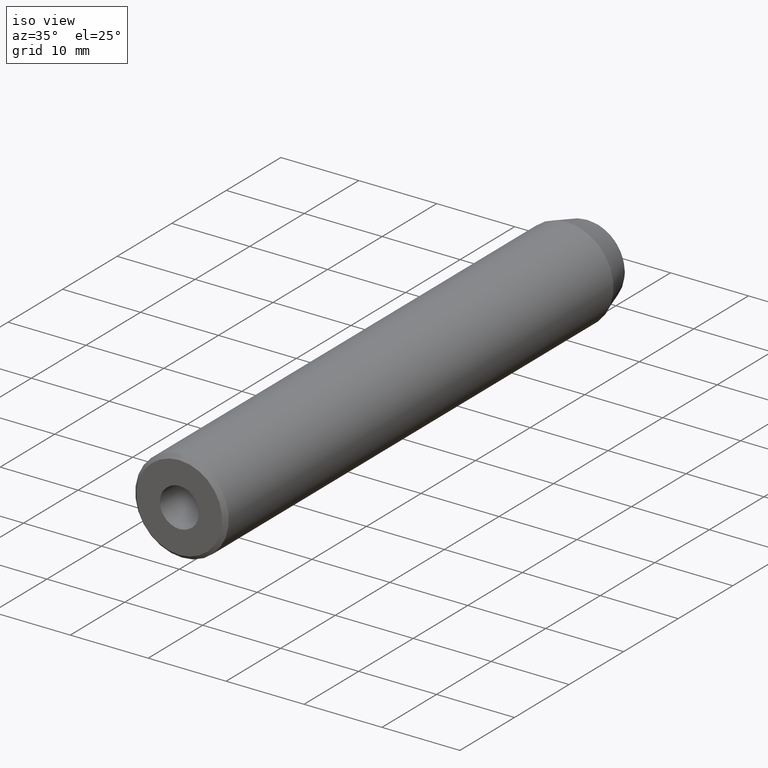
[diagram: clean part render]
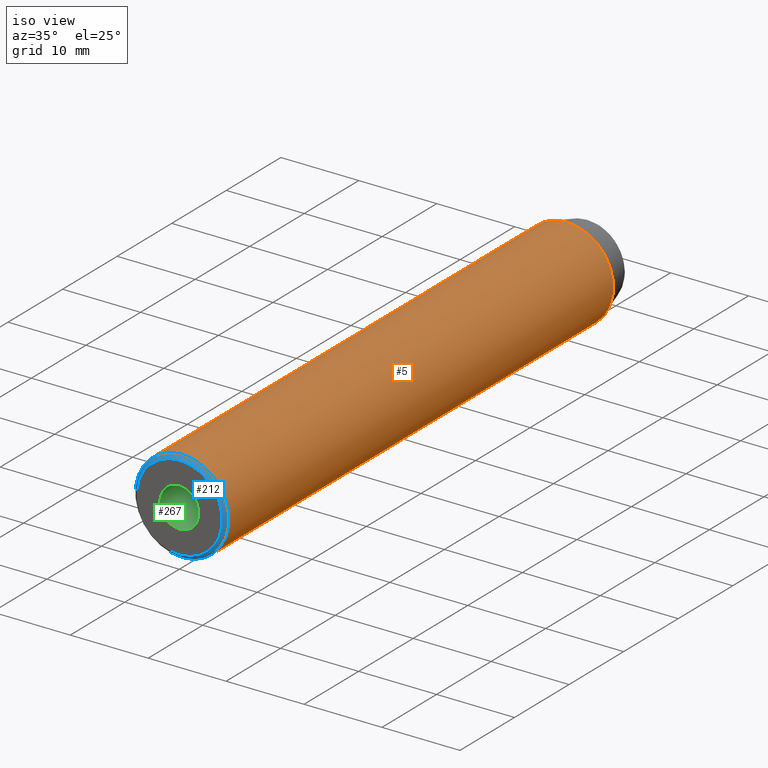
[diagram: same view with three faces highlighted in distinct colors, each labeled with its STEP entity id]
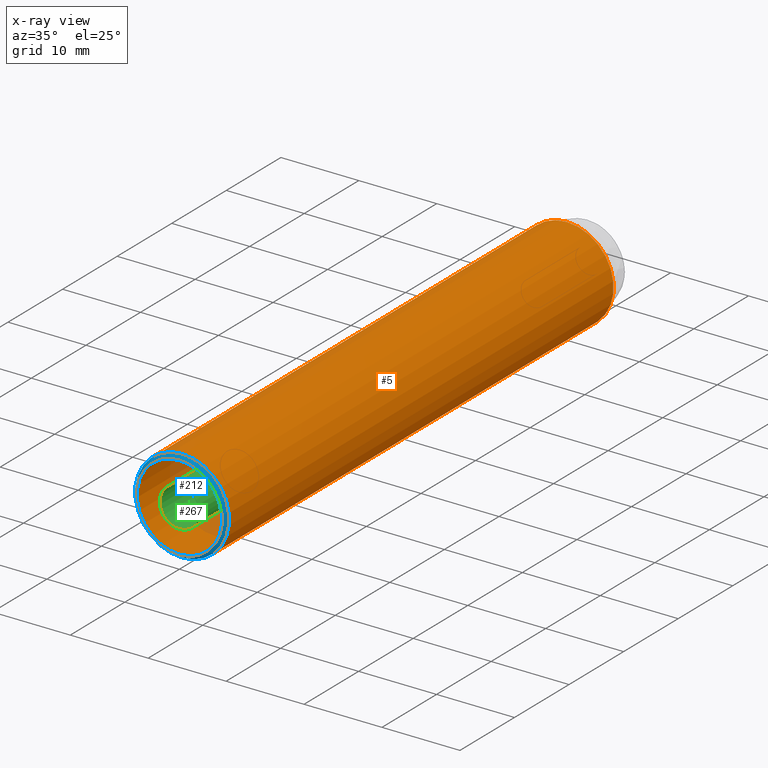
[diagram: x-ray of the same camera — body ghosted, the three highlighted faces saturated]
A machine part, iso view with three faces highlighted in distinct colors.
The next image is the same camera in x-ray (body ghosted, the three faces saturated) — at least one of them is partly hidden behind the body in this view.
Their STEP definitions:

[orange] entity #5 — the highlighted cylindrical surface (bore or boss wall) has radius 6 mm, axis along (-0, -1, -0).
#5 = ADVANCED_FACE ( 'NONE', ( #305, #85 ), #189, .T. ) ;
#7 = CARTESIAN_POINT ( 'NONE',  ( 0.000000000000000000, 0.5000000000000004441, 0.000000000000000000 ) ) ;
#15 = ORIENTED_EDGE ( 'NONE', *, *, #302, .T. ) ;
#55 = EDGE_LOOP ( 'NONE', ( #77 ) ) ;
#57 = DIRECTION ( 'NONE',  ( 0.000000000000000000, 0.000000000000000000, -1.000000000000000000 ) ) ;
#77 = ORIENTED_EDGE ( 'NONE', *, *, #145, .T. ) ;
#85 = FACE_OUTER_BOUND ( 'NONE', #207, .T. ) ;
#87 = CARTESIAN_POINT ( 'NONE',  ( 0.000000000000000000, 70.99999999999998579, -6.000000000000000888 ) ) ;
#111 = CIRCLE ( 'NONE', #148, 6.000000000000000888 ) ;
#145 = EDGE_CURVE ( 'NONE', #286, #286, #111, .T. ) ;
#148 = AXIS2_PLACEMENT_3D ( 'NONE', #7, #228, #164 ) ;
#156 = CARTESIAN_POINT ( 'NONE',  ( 0.000000000000000000, 0.5000000000000004441, -6.000000000000000888 ) ) ;
#164 = DIRECTION ( 'NONE',  ( 0.000000000000000000, 0.000000000000000000, -1.000000000000000000 ) ) ;
#176 = DIRECTION ( 'NONE',  ( -0.000000000000000000, -1.000000000000000000, -0.000000000000000000 ) ) ;
#189 = CYLINDRICAL_SURFACE ( 'NONE', #209, 6.000000000000000888 ) ;
#192 = AXIS2_PLACEMENT_3D ( 'NONE', #235, #176, #241 ) ;
#206 = DIRECTION ( 'NONE',  ( -0.000000000000000000, -1.000000000000000000, -0.000000000000000000 ) ) ;
#207 = EDGE_LOOP ( 'NONE', ( #15 ) ) ;
#209 = AXIS2_PLACEMENT_3D ( 'NONE', #259, #206, #57 ) ;
#228 = DIRECTION ( 'NONE',  ( 0.000000000000000000, 1.000000000000000000, 0.000000000000000000 ) ) ;
#235 = CARTESIAN_POINT ( 'NONE',  ( 0.000000000000000000, 70.99999999999998579, 0.000000000000000000 ) ) ;
#241 = DIRECTION ( 'NONE',  ( 0.000000000000000000, 0.000000000000000000, -1.000000000000000000 ) ) ;
#256 = CIRCLE ( 'NONE', #192, 6.000000000000000888 ) ;
#259 = CARTESIAN_POINT ( 'NONE',  ( 0.000000000000000000, 25.00000000000000000, 0.000000000000000000 ) ) ;
#286 = VERTEX_POINT ( 'NONE', #156 ) ;
#302 = EDGE_CURVE ( 'NONE', #306, #306, #256, .T. ) ;
#305 = FACE_OUTER_BOUND ( 'NONE', #55, .T. ) ;
#306 = VERTEX_POINT ( 'NONE', #87 ) ;

[blue] entity #212 — the highlighted conical surface has half-angle 45 deg.
#7 = CARTESIAN_POINT ( 'NONE',  ( 0.000000000000000000, 0.5000000000000004441, 0.000000000000000000 ) ) ;
#11 = DIRECTION ( 'NONE',  ( 0.000000000000000000, 0.000000000000000000, 1.000000000000000000 ) ) ;
#14 = FACE_OUTER_BOUND ( 'NONE', #152, .T. ) ;
#20 = CIRCLE ( 'NONE', #291, 5.500000000040472514 ) ;
#44 = DIRECTION ( 'NONE',  ( 0.000000000000000000, 1.000000000000000000, 0.000000000000000000 ) ) ;
#61 = EDGE_CURVE ( 'NONE', #89, #89, #20, .T. ) ;
#62 = CARTESIAN_POINT ( 'NONE',  ( 0.000000000000000000, 0.5000000001018634066, 0.000000000000000000 ) ) ;
#82 = DIRECTION ( 'NONE',  ( 0.000000000000000000, 0.000000000000000000, 1.000000000000000000 ) ) ;
#89 = VERTEX_POINT ( 'NONE', #158 ) ;
#104 = FACE_BOUND ( 'NONE', #155, .T. ) ;
#111 = CIRCLE ( 'NONE', #148, 6.000000000000000888 ) ;
#145 = EDGE_CURVE ( 'NONE', #286, #286, #111, .T. ) ;
#148 = AXIS2_PLACEMENT_3D ( 'NONE', #7, #228, #164 ) ;
#152 = EDGE_LOOP ( 'NONE', ( #288 ) ) ;
#155 = EDGE_LOOP ( 'NONE', ( #268 ) ) ;
#156 = CARTESIAN_POINT ( 'NONE',  ( 0.000000000000000000, 0.5000000000000004441, -6.000000000000000888 ) ) ;
#158 = CARTESIAN_POINT ( 'NONE',  ( 0.000000000000000000, 0.000000000000000000, 5.500000000040472514 ) ) ;
#164 = DIRECTION ( 'NONE',  ( 0.000000000000000000, 0.000000000000000000, -1.000000000000000000 ) ) ;
#198 = DIRECTION ( 'NONE',  ( 0.000000000000000000, 1.000000000000000000, 0.000000000000000000 ) ) ;
#212 = ADVANCED_FACE ( 'NONE', ( #14, #104 ), #224, .T. ) ;
#224 = CONICAL_SURFACE ( 'NONE', #279, 6.000000000085492502, 0.7853981633406048601 ) ;
#228 = DIRECTION ( 'NONE',  ( 0.000000000000000000, 1.000000000000000000, 0.000000000000000000 ) ) ;
#268 = ORIENTED_EDGE ( 'NONE', *, *, #61, .T. ) ;
#272 = CARTESIAN_POINT ( 'NONE',  ( 0.000000000000000000, 0.000000000000000000, 0.000000000000000000 ) ) ;
#279 = AXIS2_PLACEMENT_3D ( 'NONE', #62, #44, #11 ) ;
#286 = VERTEX_POINT ( 'NONE', #156 ) ;
#288 = ORIENTED_EDGE ( 'NONE', *, *, #145, .F. ) ;
#291 = AXIS2_PLACEMENT_3D ( 'NONE', #272, #198, #82 ) ;

[green] entity #267 — the highlighted cylindrical surface (bore or boss wall) has radius 2.5 mm, axis along (-0, -1, -0).
#1 = AXIS2_PLACEMENT_3D ( 'NONE', #150, #300, #232 ) ;
#27 = CIRCLE ( 'NONE', #36, 2.499999999999998224 ) ;
#36 = AXIS2_PLACEMENT_3D ( 'NONE', #246, #142, #247 ) ;
#39 = EDGE_CURVE ( 'NONE', #211, #211, #27, .T. ) ;
#41 = CARTESIAN_POINT ( 'NONE',  ( 0.000000000000000000, 0.000000000000000000, 0.000000000000000000 ) ) ;
#56 = AXIS2_PLACEMENT_3D ( 'NONE', #41, #124, #230 ) ;
#81 = FACE_OUTER_BOUND ( 'NONE', #112, .T. ) ;
#97 = ORIENTED_EDGE ( 'NONE', *, *, #270, .F. ) ;
#110 = CARTESIAN_POINT ( 'NONE',  ( 0.000000000000000000, 1.040949779275260987E-16, -2.499999999999998224 ) ) ;
#112 = EDGE_LOOP ( 'NONE', ( #97 ) ) ;
#124 = DIRECTION ( 'NONE',  ( -0.000000000000000000, -1.000000000000000000, -0.000000000000000000 ) ) ;
#127 = CYLINDRICAL_SURFACE ( 'NONE', #56, 2.499999999999998224 ) ;
#136 = CARTESIAN_POINT ( 'NONE',  ( 0.000000000000000000, 11.00000000000000000, -2.499999999999998224 ) ) ;
#137 = CIRCLE ( 'NONE', #1, 2.499999999999998224 ) ;
#142 = DIRECTION ( 'NONE',  ( -0.000000000000000000, -1.000000000000000000, -0.000000000000000000 ) ) ;
#150 = CARTESIAN_POINT ( 'NONE',  ( 0.000000000000000000, 11.00000000000000000, 0.000000000000000000 ) ) ;
#182 = ORIENTED_EDGE ( 'NONE', *, *, #39, .T. ) ;
#211 = VERTEX_POINT ( 'NONE', #110 ) ;
#230 = DIRECTION ( 'NONE',  ( 0.000000000000000000, 0.000000000000000000, -1.000000000000000000 ) ) ;
#232 = DIRECTION ( 'NONE',  ( 0.000000000000000000, 0.000000000000000000, -1.000000000000000000 ) ) ;
#234 = VERTEX_POINT ( 'NONE', #136 ) ;
#244 = EDGE_LOOP ( 'NONE', ( #182 ) ) ;
#246 = CARTESIAN_POINT ( 'NONE',  ( 0.000000000000000000, 1.040949779275260987E-16, 0.000000000000000000 ) ) ;
#247 = DIRECTION ( 'NONE',  ( 0.000000000000000000, 0.000000000000000000, -1.000000000000000000 ) ) ;
#267 = ADVANCED_FACE ( 'NONE', ( #81, #276 ), #127, .F. ) ;
#270 = EDGE_CURVE ( 'NONE', #234, #234, #137, .T. ) ;
#276 = FACE_OUTER_BOUND ( 'NONE', #244, .T. ) ;
#300 = DIRECTION ( 'NONE',  ( -0.000000000000000000, -1.000000000000000000, -0.000000000000000000 ) ) ;